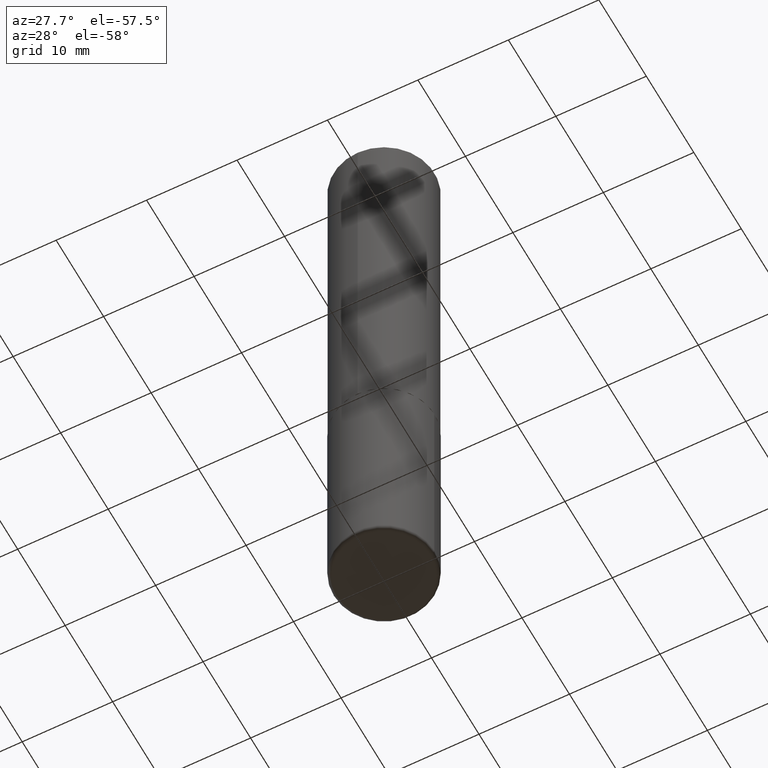
[diagram: clean part render]
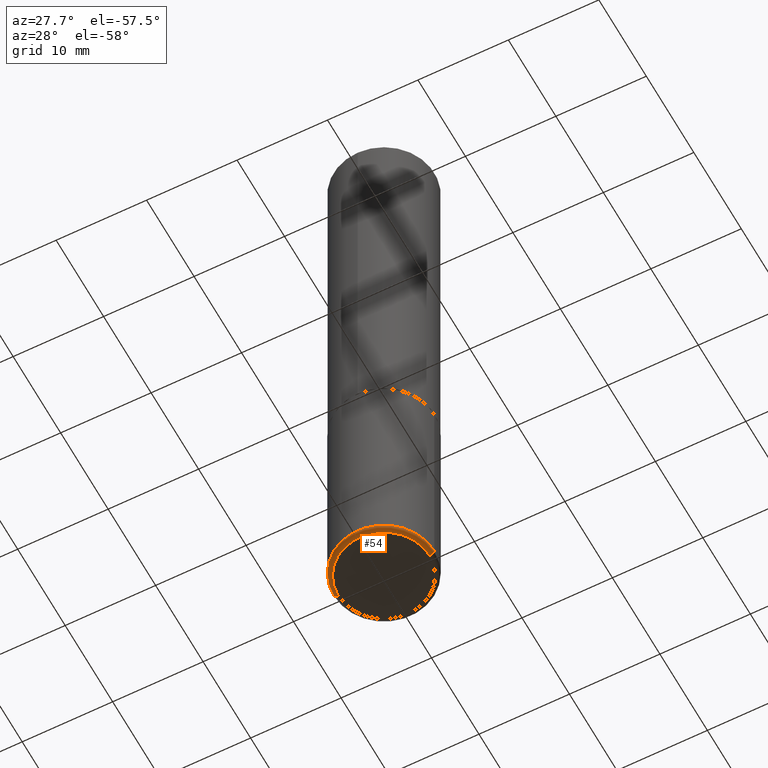
[diagram: same view with one face highlighted and labeled with its STEP entity id]
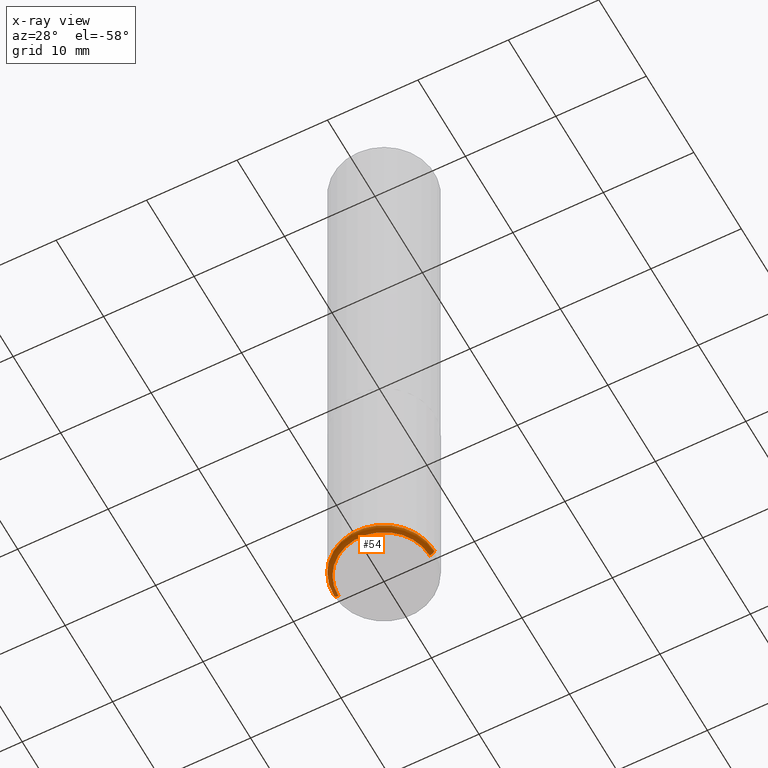
[diagram: x-ray of the same camera — body ghosted, the highlighted face saturated]
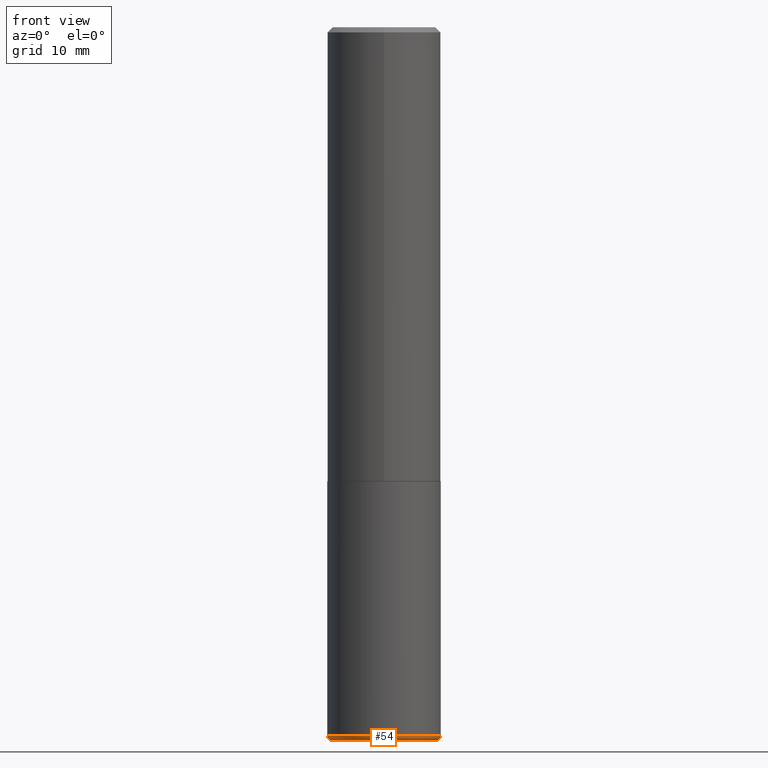
[diagram: same view with one face highlighted and labeled with its STEP entity id]
A machine part, auxiliary view. The second image highlights one B-rep face of the part: STEP entity #54.
The next image is the same camera in x-ray: the body ghosted, the highlighted face saturated — about 0% of this face is hidden behind the body in this view.
A second angle (front view) of the same face is appended — the face is thin or edge-on in the first view.
In plain terms, the highlighted toroidal blend (fillet) surface has major radius 5.0483 mm and minor (blend) radius 0.508 mm.
Its self-contained STEP definition (entity closure, byte-faithful):
#7 = EDGE_CURVE ( 'NONE', #318, #95, #399, .T. ) ;
#9 = AXIS2_PLACEMENT_3D ( 'NONE', #306, #89, #154 ) ;
#20 = CARTESIAN_POINT ( 'NONE',  ( -0.1987500000000000100, -8.083400907531010713E-15, -2.750000000000000000 ) ) ;
#24 = VERTEX_POINT ( 'NONE', #27 ) ;
#27 = CARTESIAN_POINT ( 'NONE',  ( 0.1987500000000000100, -1.098943751400879489E-14, -2.750000000000000000 ) ) ;
#35 = DIRECTION ( 'NONE',  ( 1.000000000000000000, -6.982962677686266711E-15, 4.883557194083112901E-29 ) ) ;
#54 = ADVANCED_FACE ( 'NONE', ( #364 ), #188, .T. ) ;
#58 = CIRCLE ( 'NONE', #9, 0.01999999999999988939 ) ;
#86 = CARTESIAN_POINT ( 'NONE',  ( 6.676129840885423672E-29, -9.531744055041786561E-15, -2.729999999999999982 ) ) ;
#89 = DIRECTION ( 'NONE',  ( 7.105427357601001859E-15, 1.000000000000000000, -3.491481338843145583E-15 ) ) ;
#91 = DIRECTION ( 'NONE',  ( 1.000000000000000000, -6.982962677686265133E-15, 0.000000000000000000 ) ) ;
#95 = VERTEX_POINT ( 'NONE', #208 ) ;
#96 = DIRECTION ( 'NONE',  ( -2.445468806185136597E-29, 3.491481338843145583E-15, 1.000000000000000000 ) ) ;
#102 = EDGE_CURVE ( 'NONE', #24, #95, #214, .T. ) ;
#112 = DIRECTION ( 'NONE',  ( -2.445468806185136597E-29, 3.491481338843145583E-15, 1.000000000000000000 ) ) ;
#150 = ORIENTED_EDGE ( 'NONE', *, *, #7, .F. ) ;
#154 = DIRECTION ( 'NONE',  ( -1.000000000000000000, 7.105427357601014480E-15, 0.000000000000000000 ) ) ;
#181 = CARTESIAN_POINT ( 'NONE',  ( 0.1987500000000000100, -1.091960788723193160E-14, -2.729999999999999982 ) ) ;
#188 = TOROIDAL_SURFACE ( 'NONE', #368, 0.1987500000000000100, 0.01999999999999988939 ) ;
#189 = ORIENTED_EDGE ( 'NONE', *, *, #289, .T. ) ;
#206 = EDGE_CURVE ( 'NONE', #249, #318, #58, .T. ) ;
#208 = CARTESIAN_POINT ( 'NONE',  ( 0.2187499999999999445, -1.105926714078565662E-14, -2.729999999999999982 ) ) ;
#214 = CIRCLE ( 'NONE', #236, 0.01999999999999988939 ) ;
#215 = ORIENTED_EDGE ( 'NONE', *, *, #102, .T. ) ;
#236 = AXIS2_PLACEMENT_3D ( 'NONE', #181, #301, #388 ) ;
#249 = VERTEX_POINT ( 'NONE', #20 ) ;
#253 = CARTESIAN_POINT ( 'NONE',  ( -0.2187499999999999445, -7.977431820566568982E-15, -2.729999999999999982 ) ) ;
#273 = DIRECTION ( 'NONE',  ( -2.445468806185136597E-29, 3.491481338843145583E-15, 1.000000000000000000 ) ) ;
#278 = EDGE_LOOP ( 'NONE', ( #345, #189, #215, #150 ) ) ;
#289 = EDGE_CURVE ( 'NONE', #249, #24, #312, .T. ) ;
#301 = DIRECTION ( 'NONE',  ( -6.982962677686266711E-15, -1.000000000000000000, 3.491481338843145583E-15 ) ) ;
#304 = AXIS2_PLACEMENT_3D ( 'NONE', #379, #96, #91 ) ;
#306 = CARTESIAN_POINT ( 'NONE',  ( -0.1987500000000000100, -8.119540367718587568E-15, -2.729999999999999982 ) ) ;
#312 = CIRCLE ( 'NONE', #304, 0.1987500000000000100 ) ;
#318 = VERTEX_POINT ( 'NONE', #253 ) ;
#325 = AXIS2_PLACEMENT_3D ( 'NONE', #86, #273, #343 ) ;
#343 = DIRECTION ( 'NONE',  ( 1.000000000000000000, -6.982962677686262766E-15, 0.000000000000000000 ) ) ;
#345 = ORIENTED_EDGE ( 'NONE', *, *, #206, .F. ) ;
#364 = FACE_OUTER_BOUND ( 'NONE', #278, .T. ) ;
#368 = AXIS2_PLACEMENT_3D ( 'NONE', #395, #112, #35 ) ;
#379 = CARTESIAN_POINT ( 'NONE',  ( 6.725039217009124520E-29, -9.601573681818649859E-15, -2.750000000000000000 ) ) ;
#388 = DIRECTION ( 'NONE',  ( 1.000000000000000000, -6.982962677686274599E-15, 0.000000000000000000 ) ) ;
#395 = CARTESIAN_POINT ( 'NONE',  ( 6.676129840885423672E-29, -9.531744055041786561E-15, -2.729999999999999982 ) ) ;
#399 = CIRCLE ( 'NONE', #325, 0.2187500000000000000 ) ;